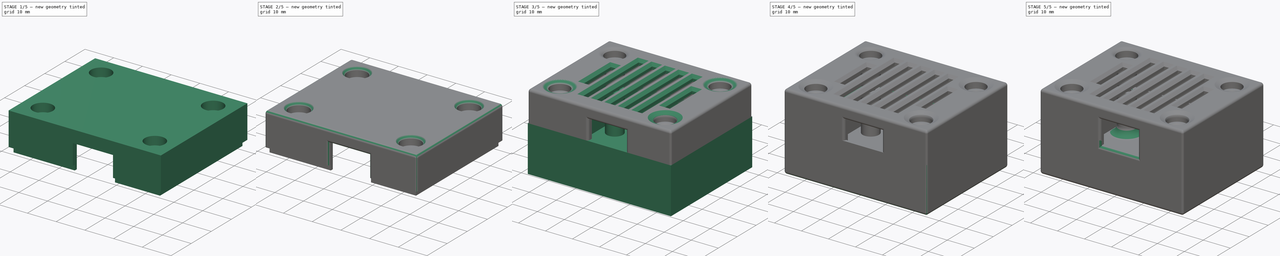
[diagram: build sequence overview — one tinted view per stage of 5, left to right]
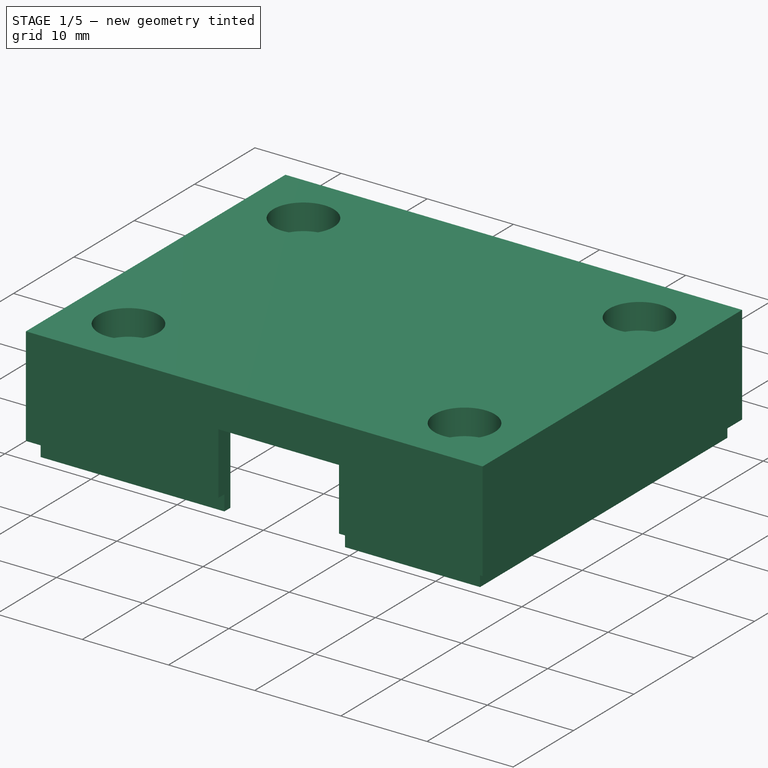
[diagram: stage 1 of 5 — iso view after this stage's code; geometry added in this stage tinted green]
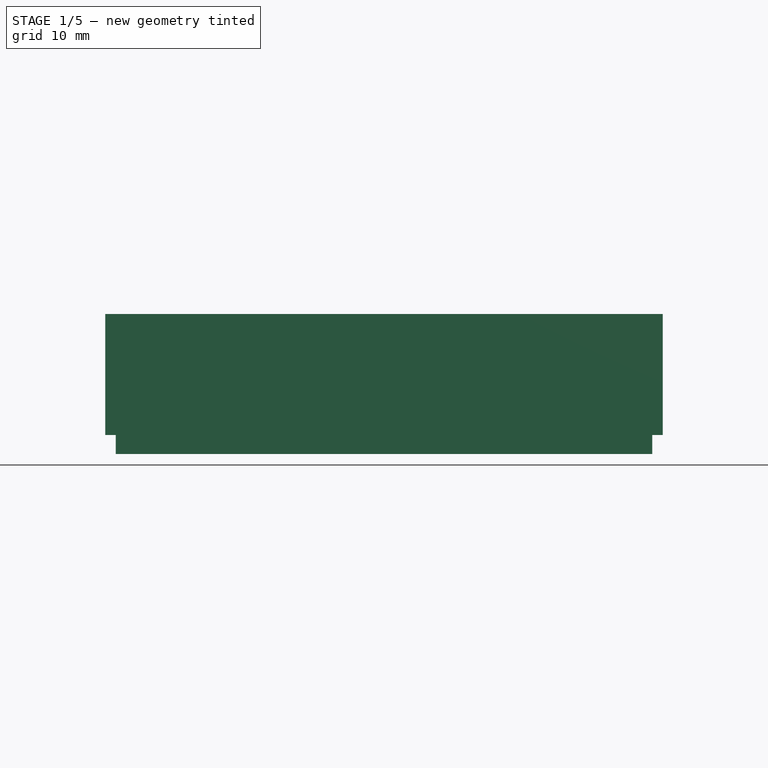
[diagram: stage 1 of 5 — front view after this stage's code; geometry added in this stage tinted green]
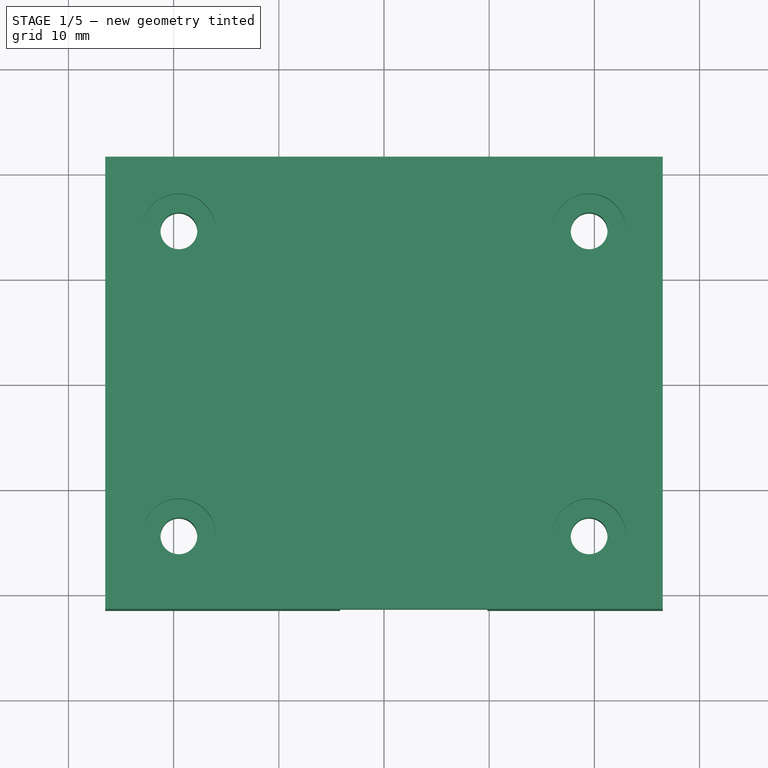
[diagram: stage 1 of 5 — top view after this stage's code; geometry added in this stage tinted green]
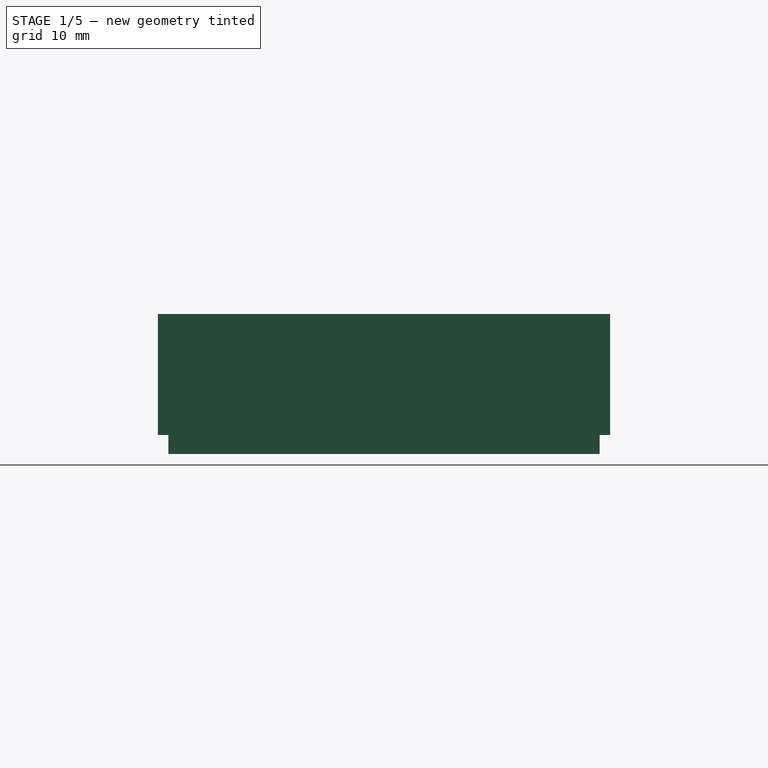
[diagram: stage 1 of 5 — right view after this stage's code; geometry added in this stage tinted green]
FCSTD DOCUMENT  (FreeCAD 0.21R33694 (Git))
Label: DTU_Gehäuse_2
License: All rights reserved
LicenseURL: http://en.wikipedia.org/wiki/All_rights_reserved
objects: Sketcher::SketchObject×15, App::Part×11, PartDesign::Fillet×11, PartDesign::Pocket×10, Part::Feature×10, PartDesign::Plane×8, PartDesign::Pad×6, PartDesign::Chamfer×6, PartDesign::Body×2, Spreadsheet::Sheet×1, Part::Part2DObjectPython×1
note: 102 computed .brp shape members not serialized (recipe doc carries the construction recipe); baked Part::Feature solids carry a one-line shape summary decoded from their .brp

FEATURE [PartDesign::Plane] DatumPlane002  label="AnschlussBoden"
  AttachmentOffset = pos=(0,0,17) rot=(0,0,1;0rad)
  Length = 63.2956
  MapMode = 5
  Placement = pos=(0,0,17) rot=(0,0,1;0rad)
  ResizeMode = 0
  Support = -> [XY_Plane013]
  Width = 60.2956
FEATURE [PartDesign::Plane] DatumPlane003  label="HöheDeckel"
  AttachmentOffset = pos=(0,0,11.5) rot=(0,0,1;0rad)
  Length = 63.2956
  MapMode = 5
  Placement = pos=(0,0,28.5) rot=(0,0,1;0rad)
  ResizeMode = 0
  Support = -> [DatumPlane002]
  Width = 60.2956
FEATURE [Sketcher::SketchObject] Sketch007  label="Überlappung001"
  AttachmentOffset = pos=(0,0,-1.8) rot=(0,0,1;0rad)
  FullyConstrained = true
  MapMode = 5
  Placement = pos=(0,0,15.2) rot=(0,0,1;0rad)
  Support = -> [DatumPlane002]
  expr: .AttachmentOffset.Base.z = Spreadsheet.ueberlappung * -1 + 0.2 mm
  expr: Constraints[10] = Spreadsheet.pcb_l + 2 * Spreadsheet.dicke + 2 * Spreadsheet.abstand
  expr: Constraints[20] = Spreadsheet.pcb_b + 2 * Spreadsheet.abstand + Spreadsheet.dicke
  expr: Constraints[21] = Spreadsheet.pcb_l + 2 * Spreadsheet.abstand + Spreadsheet.dicke
  expr: Constraints[9] = Spreadsheet.pcb_b + 2 * Spreadsheet.dicke + 2 * Spreadsheet.abstand
  sketch-geometry (8):
    g0: LineSegment StartX=-26.5 StartY=21.5 StartZ=0 EndX=26.5 EndY=21.5 EndZ=0
    g1: LineSegment StartX=26.5 StartY=21.5 StartZ=0 EndX=26.5 EndY=-21.5 EndZ=0
    g2: LineSegment StartX=26.5 StartY=-21.5 StartZ=0 EndX=-26.5 EndY=-21.5 EndZ=0
    g3: LineSegment StartX=-26.5 StartY=-21.5 StartZ=0 EndX=-26.5 EndY=21.5 EndZ=0
    g4: LineSegment StartX=-25.5 StartY=20.5 StartZ=0 EndX=25.5 EndY=20.5 EndZ=0
    g5: LineSegment StartX=25.5 StartY=20.5 StartZ=0 EndX=25.5 EndY=-20.5 EndZ=0
    g6: LineSegment StartX=25.5 StartY=-20.5 StartZ=0 EndX=-25.5 EndY=-20.5 EndZ=0
    g7: LineSegment StartX=-25.5 StartY=-20.5 StartZ=0 EndX=-25.5 EndY=20.5 EndZ=0
  constraints (22):
    c: Coincident(g0,g1)
    c: Coincident(g1,g2)
    c: Coincident(g2,g3)
    c: Coincident(g3,g0)
    c: Horizontal(g0)
    c: Horizontal(g2)
    c: Vertical(g1)
    c: Vertical(g3)
    c: Symmetric(g0,g2,g-1)
    c: DistanceX(g0,g0) = 53
    c: DistanceY(g1,g1) = 43
    c: Coincident(g4,g5)
    c: Coincident(g5,g6)
    c: Coincident(g6,g7)
    c: Coincident(g7,g4)
    c: Horizontal(g4)
    c: Horizontal(g6)
    c: Vertical(g5)
    c: Vertical(g7)
    c: Symmetric(g4,g6,g-1)
    c: DistanceX(g4,g4) = 51
    c: DistanceY(g5,g5) = 41
FEATURE [Sketcher::SketchObject] Sketch006  label="HauptKörper"
  AttachmentOffset = pos=(0,0,-1.8) rot=(0,0,1;0rad)
  FullyConstrained = true
  MapMode = 5
  Placement = pos=(0,0,15.2) rot=(0,0,1;0rad)
  Support = -> [DatumPlane002]
  expr: .AttachmentOffset.Base.z = Spreadsheet.ueberlappung * -1 + 0.2 mm
  expr: Constraints[10] = Spreadsheet.pcb_l + 2 * Spreadsheet.dicke + 2 * Spreadsheet.abstand
  expr: Constraints[9] = Spreadsheet.pcb_b + 2 * Spreadsheet.dicke + 2 * Spreadsheet.abstand
  sketch-geometry (4):
    g0: LineSegment StartX=-26.5 StartY=21.5 StartZ=0 EndX=26.5 EndY=21.5 EndZ=0
    g1: LineSegment StartX=26.5 StartY=21.5 StartZ=0 EndX=26.5 EndY=-21.5 EndZ=0
    g2: LineSegment StartX=26.5 StartY=-21.5 StartZ=0 EndX=-26.5 EndY=-21.5 EndZ=0
    g3: LineSegment StartX=-26.5 StartY=-21.5 StartZ=0 EndX=-26.5 EndY=21.5 EndZ=0
  constraints (11):
    c: Coincident(g0,g1)
    c: Coincident(g1,g2)
    c: Coincident(g2,g3)
    c: Coincident(g3,g0)
    c: Horizontal(g0)
    c: Horizontal(g2)
    c: Vertical(g1)
    c: Vertical(g3)
    c: Symmetric(g0,g2,g-1)
    c: DistanceX(g0,g0) = 53
    c: DistanceY(g1,g1) = 43
FEATURE [PartDesign::Pad] Pad003  label="HauptKörper001"
  Direction = (0,0,1)
  Length = 10
  Length2 = 10
  Placement = pos=(0,0,17) rot=(0,0,1;0rad)
  Profile = -> Sketch006
  ReferenceAxis = -> Sketch006 [N_Axis]
  Type = 3
  UpToFace = -> DatumPlane003 [Plane]
FEATURE [PartDesign::Pocket] Pocket003  label="Überlappung002"
  BaseFeature = -> Pad003
  Direction = (0,0,-1)
  Length = 1.8
  Length2 = 5
  Placement = pos=(0,0,17) rot=(0,0,1;0rad)
  Profile = -> Sketch007
  ReferenceAxis = -> Sketch007 [N_Axis]
  Reversed = true
  Type = 0
  expr: Length = Spreadsheet.ueberlappung + 0.2 mm * -1
FEATURE [Sketcher::SketchObject] Sketch008  label="InnenRaum"
  AttachmentOffset = pos=(0,0,-1.8) rot=(0,0,1;0rad)
  FullyConstrained = true
  MapMode = 5
  Placement = pos=(0,0,15.2) rot=(0,0,1;0rad)
  Support = -> [DatumPlane002]
  expr: .AttachmentOffset.Base.z = Spreadsheet.ueberlappung * -1 + 0.2 mm
  expr: Constraints[10] = Spreadsheet.pcb_b + 2 * Spreadsheet.abstand
  expr: Constraints[9] = Spreadsheet.pcb_l + 2 * Spreadsheet.abstand
  sketch-geometry (4):
    g0: LineSegment StartX=-24.5 StartY=19.5 StartZ=0 EndX=24.5 EndY=19.5 EndZ=0
    g1: LineSegment StartX=24.5 StartY=19.5 StartZ=0 EndX=24.5 EndY=-19.5 EndZ=0
    g2: LineSegment StartX=24.5 StartY=-19.5 StartZ=0 EndX=-24.5 EndY=-19.5 EndZ=0
    g3: LineSegment StartX=-24.5 StartY=-19.5 StartZ=0 EndX=-24.5 EndY=19.5 EndZ=0
  constraints (11):
    c: Coincident(g0,g1)
    c: Coincident(g1,g2)
    c: Coincident(g2,g3)
    c: Coincident(g3,g0)
    c: Horizontal(g0)
    c: Horizontal(g2)
    c: Vertical(g1)
    c: Vertical(g3)
    c: Symmetric(g0,g2,g-1)
    c: DistanceY(g1,g1) = 39
    c: DistanceX(g2,g2) = 49
FEATURE [PartDesign::Plane] DatumPlane004  label="DeckelInnen"
  AttachmentOffset = pos=(0,0,-2) rot=(0,0,1;0rad)
  Length = 63.2956
  MapMode = 2
  Placement = pos=(0,0,26.5) rot=(0,0,1;0rad)
  ResizeMode = 0
  Support = -> [DatumPlane003]
  Width = 60.2956
  expr: .AttachmentOffset.Base.z = Spreadsheet.dicke * -1
FEATURE [PartDesign::Pocket] Pocket004  label="InnenRaum001"
  BaseFeature = -> Pocket003
  Direction = (0,0,-1)
  Length = 0
  Length2 = 5
  Placement = pos=(0,0,17) rot=(0,0,1;0rad)
  Profile = -> Sketch008
  ReferenceAxis = -> Sketch008 [N_Axis]
  Reversed = true
  Type = 3
  UpToFace = -> DatumPlane004 [Plane]
FEATURE [Sketcher::SketchObject] Sketch010
  FullyConstrained = true
  MapMode = 5
  Placement = pos=(0,0,28.5) rot=(0,0,1;0rad)
  Support = -> [DatumPlane003]
  sketch-geometry (4):
    g0: Circle CenterX=-19.5 CenterY=14.5 CenterZ=0 NormalX=0 NormalY=0 NormalZ=1 AngleXU=0 Radius=3.5
    g1: Circle CenterX=19.5 CenterY=14.5 CenterZ=0 NormalX=0 NormalY=0 NormalZ=1 AngleXU=0 Radius=3.5
    g2: Circle CenterX=-19.5 CenterY=-14.5 CenterZ=0 NormalX=0 NormalY=0 NormalZ=1 AngleXU=0 Radius=3.5
    g3: Circle CenterX=19.5 CenterY=-14.5 CenterZ=0 NormalX=0 NormalY=0 NormalZ=1 AngleXU=0 Radius=3.5
  constraints (11):
    c: Equal(g0,g1)
    c: Equal(g1,g3)
    c: Equal(g3,g2)
    c: Horizontal(g0,g1)
    c: Vertical(g0,g2)
    c: Horizontal(g2,g3)
    c: Vertical(g1,g3)
    c: Symmetric(g1,g2,g-1)
    c: Diameter(g0) = 7
    c: DistanceX(g0,g1) = 39
    c: DistanceY(g2,g0) = 29
FEATURE [Sketcher::SketchObject] Sketch011
  FullyConstrained = true
  MapMode = 5
  Placement = pos=(0,0,26.5) rot=(0,0,1;0rad)
  Support = -> [DatumPlane004]
  sketch-geometry (8):
    g0: Circle CenterX=-19.5 CenterY=14.5 CenterZ=0 NormalX=0 NormalY=0 NormalZ=1 AngleXU=0 Radius=4.5
    g1: Circle CenterX=19.5 CenterY=14.5 CenterZ=0 NormalX=0 NormalY=0 NormalZ=1 AngleXU=0 Radius=4.5
    g2: Circle CenterX=19.5 CenterY=-14.5 CenterZ=0 NormalX=0 NormalY=0 NormalZ=1 AngleXU=0 Radius=4.5
    g3: Circle CenterX=-19.5 CenterY=-14.5 CenterZ=0 NormalX=0 NormalY=0 NormalZ=1 AngleXU=0 Radius=4.5
    g4: Circle CenterX=-19.5 CenterY=14.5 CenterZ=0 NormalX=0 NormalY=0 NormalZ=1 AngleXU=0 Radius=1.75
    g5: Circle CenterX=19.5 CenterY=14.5 CenterZ=0 NormalX=0 NormalY=0 NormalZ=1 AngleXU=0 Radius=1.75
    g6: Circle CenterX=-19.5 CenterY=-14.5 CenterZ=0 NormalX=0 NormalY=0 NormalZ=1 AngleXU=0 Radius=1.75
    g7: Circle CenterX=19.5 CenterY=-14.5 CenterZ=0 NormalX=0 NormalY=0 NormalZ=1 AngleXU=0 Radius=1.75
  constraints (19):
    c: Equal(g0,g1)
    c: Equal(g1,g2)
    c: Equal(g2,g3)
    c: Horizontal(g0,g1)
    c: Vertical(g0,g3)
    c: Vertical(g1,g2)
    c: Horizontal(g3,g2)
    c: Symmetric(g1,g3,g-1)
    c: DistanceX(g0,g1) = 39
    c: DistanceY(g3,g0) = 29
    c: Diameter(g0) = 9
    c: Coincident(g4,g0)
    c: Coincident(g5,g1)
    c: Coincident(g6,g3)
    c: Coincident(g7,g2)
    c: Equal(g4,g5)
    c: Equal(g4,g7)
    c: Equal(g4,g6)
    c: Diameter(g4) = 3.5
FEATURE [PartDesign::Pad] Pad005  label="SchraubendomeGroß"
  BaseFeature = -> Pocket004
  Direction = (0,0,1)
  Length = 3
  Length2 = 10
  Placement = pos=(0,0,17) rot=(0,0,1;0rad)
  Profile = -> Sketch011
  ReferenceAxis = -> Sketch011 [N_Axis]
  Reversed = true
  Type = 0
FEATURE [PartDesign::Plane] DatumPlane005  label="SchraubenDomeInnen"
  AttachmentOffset = pos=(0,0,-3) rot=(0,0,1;0rad)
  Length = 63.2956
  MapMode = 2
  Placement = pos=(0,0,23.5) rot=(0,0,1;0rad)
  ResizeMode = 0
  Support = -> [DatumPlane004]
  Width = 60.2956
FEATURE [Sketcher::SketchObject] Sketch009  label="Schraubendome001"
  FullyConstrained = true
  MapMode = 5
  Placement = pos=(0,0,26.5) rot=(0,0,1;0rad)
  Support = -> [DatumPlane004,DatumPlane005]
  sketch-geometry (8):
    g0: Circle CenterX=-19.5 CenterY=14.5 CenterZ=0 NormalX=0 NormalY=0 NormalZ=1 AngleXU=0 Radius=1.75
    g1: Circle CenterX=19.5 CenterY=14.5 CenterZ=0 NormalX=0 NormalY=0 NormalZ=1 AngleXU=0 Radius=1.75
    g2: Circle CenterX=-19.5 CenterY=-14.5 CenterZ=0 NormalX=0 NormalY=0 NormalZ=1 AngleXU=0 Radius=1.75
    g3: Circle CenterX=19.5 CenterY=-14.5 CenterZ=0 NormalX=0 NormalY=0 NormalZ=1 AngleXU=0 Radius=1.75
    g4: Circle CenterX=-19.5 CenterY=14.5 CenterZ=0 NormalX=0 NormalY=0 NormalZ=1 AngleXU=0 Radius=3
    g5: Circle CenterX=19.5 CenterY=14.5 CenterZ=0 NormalX=0 NormalY=0 NormalZ=1 AngleXU=0 Radius=3
    g6: Circle CenterX=19.5 CenterY=-14.5 CenterZ=0 NormalX=0 NormalY=0 NormalZ=1 AngleXU=0 Radius=3
    g7: Circle CenterX=-19.5 CenterY=-14.5 CenterZ=0 NormalX=0 NormalY=0 NormalZ=1 AngleXU=0 Radius=3
  constraints (20):
    c: Equal(g0,g1)
    c: Equal(g1,g3)
    c: Equal(g3,g2)
    c: Diameter(g0) = 3.5
    c: Horizontal(g0,g1)
    c: Vertical(g0,g2)
    c: DistanceX(g0,g1) = 39
    c: DistanceY(g3,g0) = 29
    c: Coincident(g4,g0)
    c: Coincident(g5,g1)
    c: Coincident(g6,g3)
    c: Coincident(g7,g2)
    c: Equal(g4,g5)
    c: Equal(g5,g6)
    c: Equal(g6,g7)
    c: Diameter(g4) = 6
    c: Horizontal(g2,g3)
    c: Vertical(g1,g3)
    c: DistanceX(g0,g-1) = 19.5
    c: DistanceY(g2,g-1) = 14.5
FEATURE [PartDesign::Pad] Pad006  label="SchraubendomeKlein"
  BaseFeature = -> Pad005
  Direction = (0,0,1)
  Length = 8.4
  Length2 = 10
  Placement = pos=(0,0,17) rot=(0,0,1;0rad)
  Profile = -> Sketch009
  ReferenceAxis = -> Sketch009 [N_Axis]
  Reversed = true
  Type = 0
FEATURE [PartDesign::Pocket] Pocket005  label="Schraubenkopf"
  BaseFeature = -> Pad006
  Direction = (0,0,-1)
  Length = 3
  Length2 = 5
  Placement = pos=(0,0,17) rot=(0,0,1;0rad)
  Profile = -> Sketch010
  ReferenceAxis = -> Sketch010 [N_Axis]
  Type = 0
FEATURE [PartDesign::Pocket] Pocket008  label="UsbAnschluss001"
  BaseFeature = -> Pocket005
  Direction = (0,1,-2e-16)
  Length = 2
  Length2 = 5
  Placement = pos=(0,0,17) rot=(0,0,1;0rad)
  Profile = -> Sketch012
  ReferenceAxis = -> Sketch012 [N_Axis]
  Type = 0
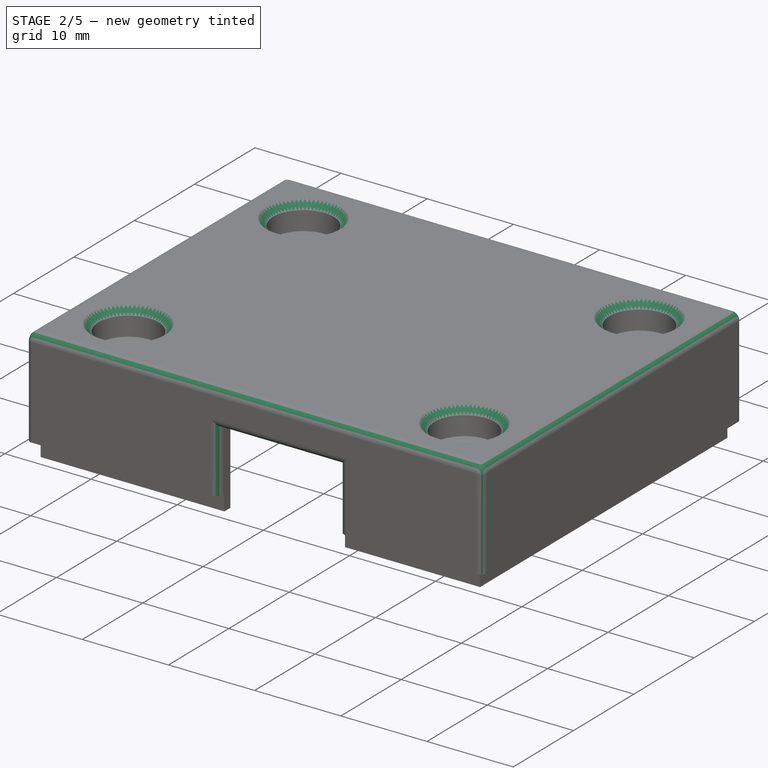
[diagram: stage 2 of 5 — iso view after this stage's code; geometry added in this stage tinted green]
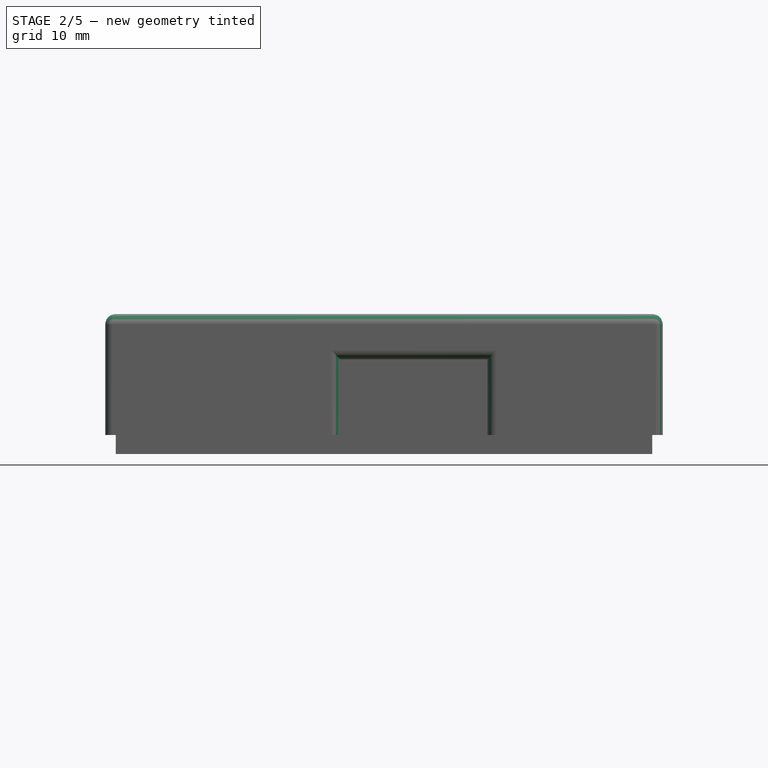
[diagram: stage 2 of 5 — front view after this stage's code; geometry added in this stage tinted green]
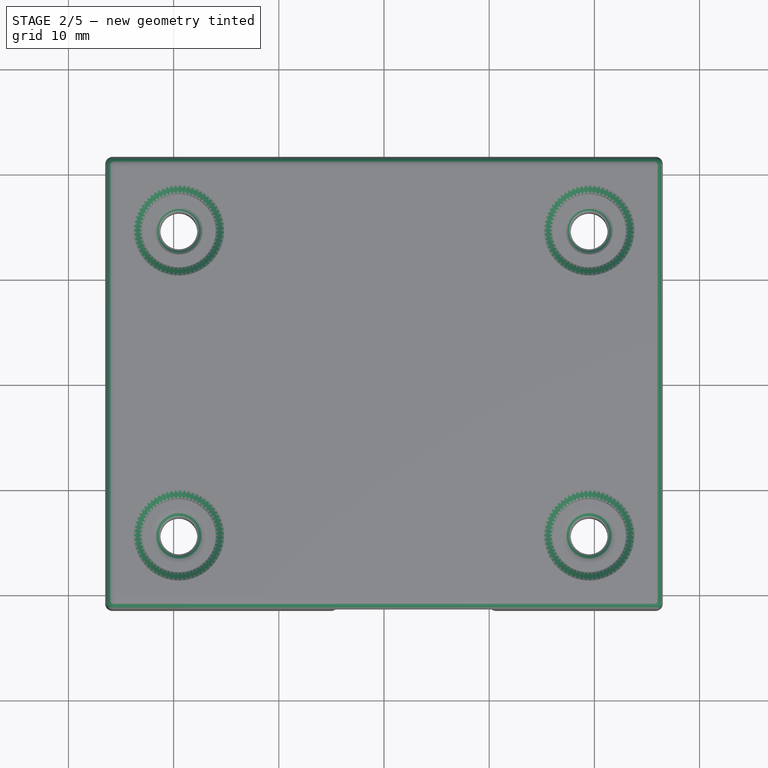
[diagram: stage 2 of 5 — top view after this stage's code; geometry added in this stage tinted green]
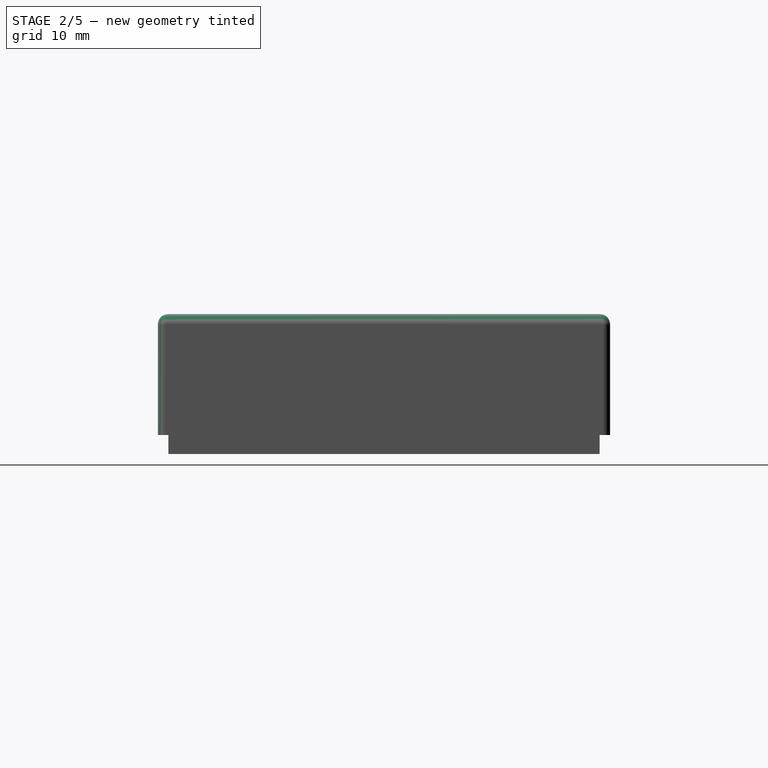
[diagram: stage 2 of 5 — right view after this stage's code; geometry added in this stage tinted green]
FEATURE [PartDesign::Fillet] Fillet004  label="Fillet004-10"
  Base = -> Pocket008 [Edge19,Edge18,Edge3,Edge17]
  BaseFeature = -> Pocket008
  Placement = pos=(0,0,17) rot=(0,0,1;0rad)
  Radius = 1
  SupportTransform = false
  UseAllEdges = false
FEATURE [PartDesign::Fillet] Fillet005  label="Fillet005-07"
  Base = -> Fillet004 [Edge22,Edge5,Edge1,Edge4]
  BaseFeature = -> Fillet004
  Placement = pos=(0,0,17) rot=(0,0,1;0rad)
  Radius = 0.7
  SupportTransform = false
  UseAllEdges = false
FEATURE [PartDesign::Chamfer] Chamfer003  label="Chamfer003-08"
  Angle = 45
  Base = -> Fillet005 [Edge36,Edge37,Edge35,Edge34]
  BaseFeature = -> Fillet005
  ChamferType = 0
  FlipDirection = false
  Placement = pos=(0,0,17) rot=(0,0,1;0rad)
  Size = 0.8
  Size2 = 1
  SupportTransform = false
  UseAllEdges = false
FEATURE [PartDesign::Chamfer] Chamfer004  label="Chamfer004-05"
  Angle = 45
  Base = -> Chamfer003 [Edge61,Edge82,Edge83,Edge84]
  BaseFeature = -> Chamfer003
  ChamferType = 0
  FlipDirection = false
  Placement = pos=(0,0,17) rot=(0,0,1;0rad)
  Size = 0.5
  Size2 = 1
  SupportTransform = false
  UseAllEdges = false
FEATURE [PartDesign::Fillet] Fillet006  label="USB Anschluss002"
  Base = -> Chamfer004 [Edge46,Edge47,Edge45]
  BaseFeature = -> Chamfer004
  Placement = pos=(0,0,17) rot=(0,0,1;0rad)
  Radius = 0.9
  SupportTransform = false
  UseAllEdges = false
FEATURE [PartDesign::Fillet] Fillet007  label="Fillet007-10"
  Base = -> Fillet006 [Edge127,Edge125,Edge126,Edge124]
  BaseFeature = -> Fillet006
  Placement = pos=(0,0,17) rot=(0,0,1;0rad)
  Radius = 1
  SupportTransform = false
  UseAllEdges = false
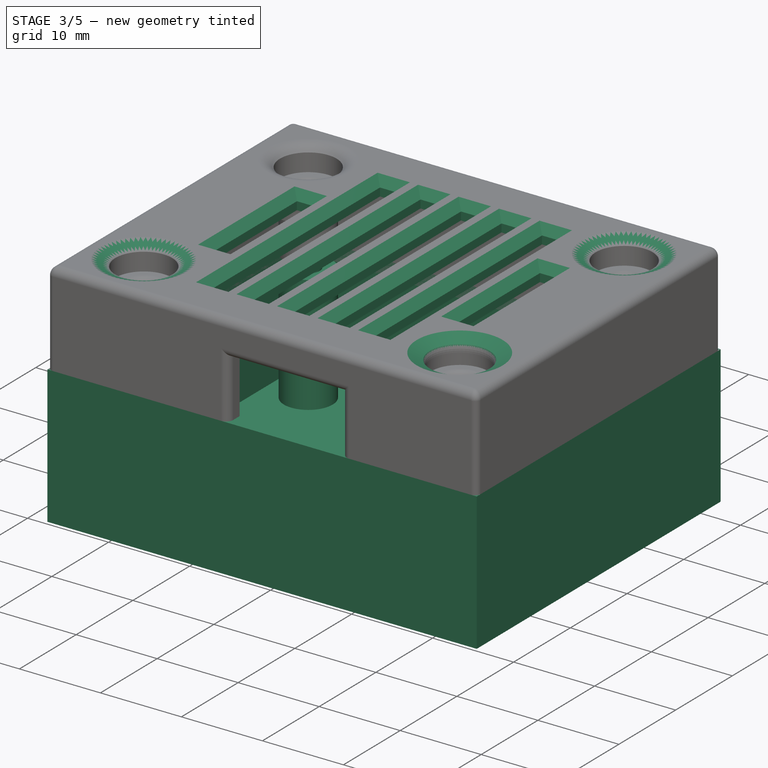
[diagram: stage 3 of 5 — iso view after this stage's code; geometry added in this stage tinted green]
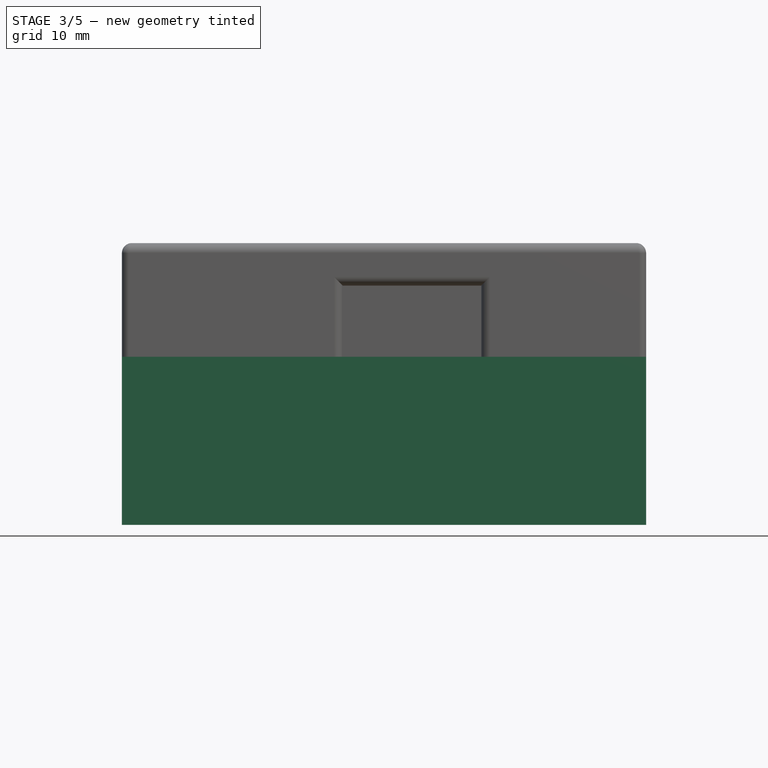
[diagram: stage 3 of 5 — front view after this stage's code; geometry added in this stage tinted green]
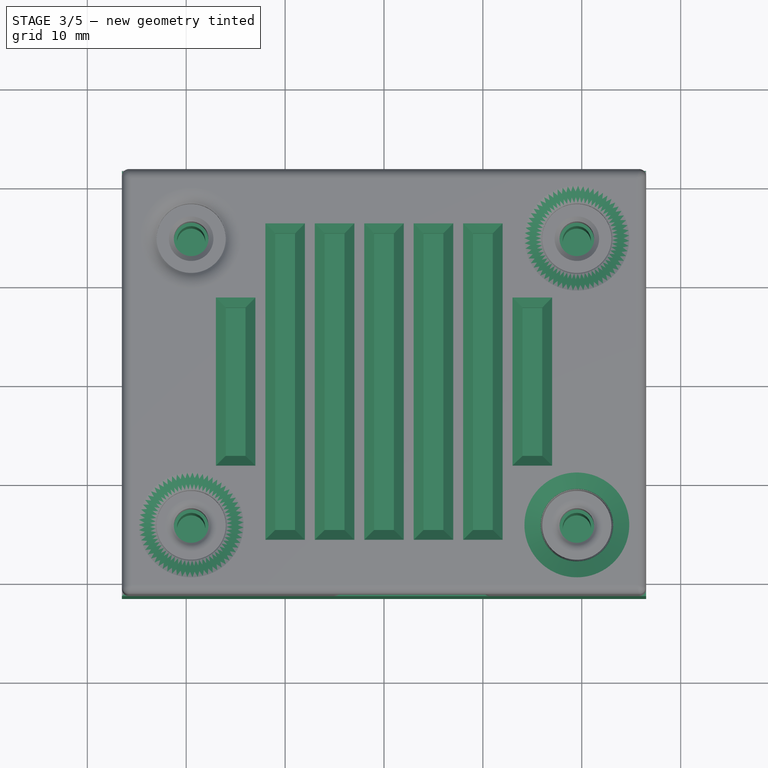
[diagram: stage 3 of 5 — top view after this stage's code; geometry added in this stage tinted green]
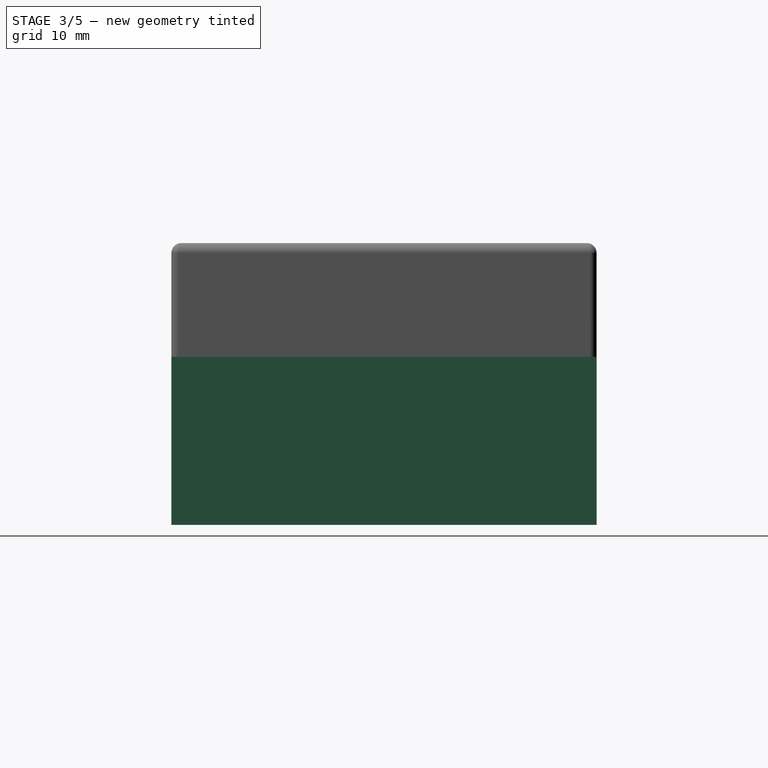
[diagram: stage 3 of 5 — right view after this stage's code; geometry added in this stage tinted green]
FEATURE [Sketcher::SketchObject] Sketch
  FullyConstrained = true
  MapMode = 5
  Support = -> [XY_Plane]
  expr: Constraints[10] = Spreadsheet.pcb_l + 2 * Spreadsheet.dicke + 2 * Spreadsheet.abstand
  expr: Constraints[9] = Spreadsheet.pcb_b + 2 * Spreadsheet.abstand + 2 * Spreadsheet.dicke
  sketch-geometry (4):
    g0: LineSegment StartX=-26.5 StartY=21.5 StartZ=0 EndX=26.5 EndY=21.5 EndZ=0
    g1: LineSegment StartX=26.5 StartY=21.5 StartZ=0 EndX=26.5 EndY=-21.5 EndZ=0
    g2: LineSegment StartX=26.5 StartY=-21.5 StartZ=0 EndX=-26.5 EndY=-21.5 EndZ=0
    g3: LineSegment StartX=-26.5 StartY=-21.5 StartZ=0 EndX=-26.5 EndY=21.5 EndZ=0
  constraints (11):
    c: Coincident(g0,g1)
    c: Coincident(g1,g2)
    c: Coincident(g2,g3)
    c: Coincident(g3,g0)
    c: Horizontal(g0)
    c: Horizontal(g2)
    c: Vertical(g1)
    c: Vertical(g3)
    c: Symmetric(g0,g2,g-1)
    c: DistanceX(g0,g0) = 53
    c: DistanceY(g1,g1) = 43
FEATURE [Spreadsheet::Sheet] Spreadsheet
  cells = A2='pcb_b; B2(pcb_b)==47 mm; A3='pcb_l; B3(pcb_l)==37 mm; A4='loch_b; B4(loch_b)==39 mm; A5='loch_l; B5(loch_l)==29 mm; A6='dicke; B6(dicke)==2 mm; A7='abstand; B7(abstand)==1 mm; A8='ueberlappung; B8(ueberlappung)==2 mm
FEATURE [PartDesign::Plane] DatumPlane  label="BodenHöhe"
  AttachmentOffset = pos=(0,0,17) rot=(0,0,1;0rad)
  Length = 60
  MapMode = 5
  Placement = pos=(0,0,17) rot=(0,0,1;0rad)
  ResizeMode = 0
  Support = -> [XY_Plane]
  Width = 60
FEATURE [PartDesign::Pad] Pad  label="Aussen"
  Direction = (0,0,1)
  Length = 15
  Length2 = 10
  Profile = -> Sketch
  ReferenceAxis = -> Sketch [N_Axis]
  Type = 3
  UpToFace = -> DatumPlane [Plane]
FEATURE [Sketcher::SketchObject] Sketch001
  FullyConstrained = true
  MapMode = 5
  Placement = pos=(0,0,17) rot=(0,0,1;0rad)
  Support = -> [DatumPlane]
  expr: Constraints[10] = Spreadsheet.pcb_l + 2 * Spreadsheet.abstand
  expr: Constraints[9] = Spreadsheet.pcb_b + 2 * Spreadsheet.abstand
  sketch-geometry (4):
    g0: LineSegment StartX=-24.5 StartY=19.5 StartZ=0 EndX=24.5 EndY=19.5 EndZ=0
    g1: LineSegment StartX=24.5 StartY=19.5 StartZ=0 EndX=24.5 EndY=-19.5 EndZ=0
    g2: LineSegment StartX=24.5 StartY=-19.5 StartZ=0 EndX=-24.5 EndY=-19.5 EndZ=0
    g3: LineSegment StartX=-24.5 StartY=-19.5 StartZ=0 EndX=-24.5 EndY=19.5 EndZ=0
  constraints (11):
    c: Coincident(g0,g1)
    c: Coincident(g1,g2)
    c: Coincident(g2,g3)
    c: Coincident(g3,g0)
    c: Horizontal(g0)
    c: Horizontal(g2)
    c: Vertical(g1)
    c: Vertical(g3)
    c: Symmetric(g0,g1,g-1)
    c: DistanceX(g0,g0) = 49
    c: DistanceY(g1,g1) = 39
FEATURE [PartDesign::Plane] DatumPlane001  label="BodenInnen"
  AttachmentOffset = pos=(0,0,2) rot=(0,0,1;0rad)
  Length = 60
  MapMode = 5
  Placement = pos=(0,0,2) rot=(0,0,1;0rad)
  ResizeMode = 0
  Support = -> [XY_Plane]
  Width = 60
  expr: .AttachmentOffset.Base.z = Spreadsheet.dicke
FEATURE [PartDesign::Pocket] Pocket
  BaseFeature = -> Pad
  Direction = (0,0,-1)
  Length = 0
  Length2 = 5
  Profile = -> Sketch001
  ReferenceAxis = -> Sketch001 [N_Axis]
  Type = 3
  UpToFace = -> DatumPlane001 [Plane]
FEATURE [Sketcher::SketchObject] Sketch002
  FullyConstrained = true
  MapMode = 5
  Placement = pos=(0,0,2) rot=(0,0,1;0rad)
  Support = -> [DatumPlane001]
  expr: Constraints[8] = Spreadsheet.loch_l
  expr: Constraints[9] = Spreadsheet.loch_b
  sketch-geometry (8):
    g0: Circle CenterX=-19.5 CenterY=14.5 CenterZ=0 NormalX=0 NormalY=0 NormalZ=1 AngleXU=0 Radius=1.425
    g1: Circle CenterX=19.5 CenterY=14.5 CenterZ=0 NormalX=0 NormalY=0 NormalZ=1 AngleXU=0 Radius=1.425
    g2: Circle CenterX=-19.5 CenterY=-14.5 CenterZ=0 NormalX=0 NormalY=0 NormalZ=1 AngleXU=0 Radius=1.425
    g3: Circle CenterX=19.5 CenterY=-14.5 CenterZ=0 NormalX=0 NormalY=0 NormalZ=1 AngleXU=0 Radius=1.425
    g4: Circle CenterX=-19.5 CenterY=14.5 CenterZ=0 NormalX=0 NormalY=0 NormalZ=1 AngleXU=0 Radius=3
    g5: Circle CenterX=19.5 CenterY=14.5 CenterZ=0 NormalX=0 NormalY=0 NormalZ=1 AngleXU=0 Radius=3
    g6: Circle CenterX=19.5 CenterY=-14.5 CenterZ=0 NormalX=0 NormalY=0 NormalZ=1 AngleXU=0 Radius=3
    g7: Circle CenterX=-19.5 CenterY=-14.5 CenterZ=0 NormalX=0 NormalY=0 NormalZ=1 AngleXU=0 Radius=3
  constraints (19):
    c: Equal(g0,g1)
    c: Equal(g1,g3)
    c: Equal(g3,g2)
    c: Diameter(g0) = 2.85
    c: Vertical(g2,g0)
    c: Vertical(g1,g3)
    c: Horizontal(g0,g1)
    c: Horizontal(g2,g3)
    c: DistanceY(g2,g0) = 29
    c: DistanceX(g2,g3) = 39
    c: Symmetric(g0,g3,g-1)
    c: Equal(g4,g5)
    c: Equal(g5,g6)
    c: Equal(g6,g7)
    c: Diameter(g4) = 6
    c: Coincident(g7,g2)
    c: Coincident(g4,g0)
    c: Coincident(g5,g1)
    c: Coincident(g6,g3)
FEATURE [PartDesign::Pad] Pad001  label="Schraubendome"
  BaseFeature = -> Pocket
  Direction = (0,0,1)
  Length = 14.5
  Length2 = 10
  Profile = -> Sketch002
  ReferenceAxis = -> Sketch002 [N_Axis]
  Type = 0
FEATURE [PartDesign::Fillet] Fillet008  label="Fillet008-20"
  Base = -> Fillet007 [Edge13,Edge15,Edge6,Edge14]
  BaseFeature = -> Fillet007
  Placement = pos=(0,0,17) rot=(0,0,1;0rad)
  Radius = 2
  SupportTransform = false
  UseAllEdges = false
FEATURE [PartDesign::Body] Body  label="Boden mit Display"
  Group = -> [DatumPlane,DatumPlane001,DatumPlane007,Sketch,Pad,Sketch001,Pocket,Sketch002,Pad001,Sketch003,Pocket001,Sketch004,Pocket002,Sketch005,Pad002,Chamfer,Fillet,Fillet001,Fillet002,Fillet003,Chamfer001,Chamfer002,ShapeString,Pocket007,Sketch013,Pocket009,Fillet009]
  Origin = -> Origin
  Tip = -> Fillet009
FEATURE [Sketcher::SketchObject] Sketch014
  FullyConstrained = true
  MapMode = 5
  Placement = pos=(0,0,28.5) rot=(0,0,1;0rad)
  Support = -> [DatumPlane003]
  sketch-geometry (28):
    g0: LineSegment StartX=-11 StartY=15 StartZ=0 EndX=-9 EndY=15 EndZ=0
    g1: LineSegment StartX=-9 StartY=15 StartZ=0 EndX=-9 EndY=-15 EndZ=0
    g2: LineSegment StartX=-9 StartY=-15 StartZ=0 EndX=-11 EndY=-15 EndZ=0
    g3: LineSegment StartX=-11 StartY=-15 StartZ=0 EndX=-11 EndY=15 EndZ=0
    g4: LineSegment StartX=-6 StartY=15 StartZ=0 EndX=-4 EndY=15 EndZ=0
    g5: LineSegment StartX=-4 StartY=15 StartZ=0 EndX=-4 EndY=-15 EndZ=0
    g6: LineSegment StartX=-4 StartY=-15 StartZ=0 EndX=-6 EndY=-15 EndZ=0
    g7: LineSegment StartX=-6 StartY=-15 StartZ=0 EndX=-6 EndY=15 EndZ=0
    g8: LineSegment StartX=-1 StartY=15 StartZ=0 EndX=1 EndY=15 EndZ=0
    g9: LineSegment StartX=1 StartY=15 StartZ=0 EndX=1 EndY=-15 EndZ=0
    g10: LineSegment StartX=1 StartY=-15 StartZ=0 EndX=-1 EndY=-15 EndZ=0
    g11: LineSegment StartX=-1 StartY=-15 StartZ=0 EndX=-1 EndY=15 EndZ=0
    g12: LineSegment StartX=4 StartY=15 StartZ=0 EndX=6 EndY=15 EndZ=0
    g13: LineSegment StartX=6 StartY=15 StartZ=0 EndX=6 EndY=-15 EndZ=0
    g14: LineSegment StartX=6 StartY=-15 StartZ=0 EndX=4 EndY=-15 EndZ=0
    g15: LineSegment StartX=4 StartY=-15 StartZ=0 EndX=4 EndY=15 EndZ=0
    g16: LineSegment StartX=9 StartY=15 StartZ=0 EndX=11 EndY=15 EndZ=0
    g17: LineSegment StartX=11 StartY=15 StartZ=0 EndX=11 EndY=-15 EndZ=0
    g18: LineSegment StartX=11 StartY=-15 StartZ=0 EndX=9 EndY=-15 EndZ=0
    g19: LineSegment StartX=9 StartY=-15 StartZ=0 EndX=9 EndY=15 EndZ=0
    g20: LineSegment StartX=-16 StartY=7.5 StartZ=0 EndX=-14 EndY=7.5 EndZ=0
    g21: LineSegment StartX=-14 StartY=7.5 StartZ=0 EndX=-14 EndY=-7.5 EndZ=0
    g22: LineSegment StartX=-14 StartY=-7.5 StartZ=0 EndX=-16 EndY=-7.5 EndZ=0
    g23: LineSegment StartX=-16 StartY=-7.5 StartZ=0 EndX=-16 EndY=7.5 EndZ=0
    g24: LineSegment StartX=14 StartY=7.5 StartZ=0 EndX=16 EndY=7.5 EndZ=0
    g25: LineSegment StartX=16 StartY=7.5 StartZ=0 EndX=16 EndY=-7.5 EndZ=0
    g26: LineSegment StartX=16 StartY=-7.5 StartZ=0 EndX=14 EndY=-7.5 EndZ=0
    g27: LineSegment StartX=14 StartY=-7.5 StartZ=0 EndX=14 EndY=7.5 EndZ=0
  constraints (76):
    c: Coincident(g0,g1)
    c: Coincident(g1,g2)
    c: Coincident(g2,g3)
    c: Coincident(g3,g0)
    c: Horizontal(g0)
    c: Horizontal(g2)
    c: Vertical(g1)
    c: Coincident(g4,g5)
    c: Coincident(g5,g6)
    c: Coincident(g6,g7)
    c: Coincident(g7,g4)
    c: Horizontal(g4)
    c: Horizontal(g6)
    c: Vertical(g5)
    c: Coincident(g8,g9)
    c: Coincident(g9,g10)
    c: Coincident(g10,g11)
    c: Coincident(g11,g8)
    c: Horizontal(g10)
    c: Vertical(g9)
    c: Symmetric(g0,g2,g-1)
    c: DistanceX(g0,g0) = 2
    c: DistanceY(g3,g3) = 30
    c: Symmetric(g4,g6,g-1)
    c: DistanceX(g4,g4) = 2
    c: DistanceY(g7,g7) = 30
    c: Symmetric(g8,g10,g-1)
    c: DistanceX(g8,g8) = 2
    c: DistanceY(g11,g11) = 30
    c: Coincident(g12,g13)
    c: Coincident(g13,g14)
    c: Coincident(g14,g15)
    c: Coincident(g15,g12)
    c: Horizontal(g12)
    c: Horizontal(g14)
    c: Vertical(g13)
    c: Coincident(g16,g17)
    c: Coincident(g17,g18)
    c: Coincident(g18,g19)
    c: Coincident(g19,g16)
    c: Horizontal(g16)
    c: Horizontal(g18)
    c: Vertical(g17)
    c: Symmetric(g12,g14,g-1)
    c: Symmetric(g16,g18,g-1)
    c: DistanceX(g12,g12) = 2
    c: DistanceX(g16,g16) = 2
    c: DistanceY(g13,g13) = 30
    c: DistanceY(g17,g17) = 30
    c: DistanceX(g8,g12) = 5
    c: DistanceX(g12,g16) = 5
    c: Symmetric(g8,g8,g-2)
    c: DistanceX(g4,g8) = 5
    c: DistanceX(g0,g4) = 5
    c: Coincident(g20,g21)
    c: Coincident(g21,g22)
    c: Coincident(g22,g23)
    c: Coincident(g23,g20)
    c: Horizontal(g20)
    c: Horizontal(g22)
    c: Vertical(g21)
    c: Coincident(g24,g25)
    c: Coincident(g25,g26)
    c: Coincident(g26,g27)
    c: Coincident(g27,g24)
    c: Horizontal(g24)
    c: Horizontal(g26)
    c: Vertical(g25)
    c: Symmetric(g20,g22,g-1)
    c: Symmetric(g24,g26,g-1)
    c: DistanceX(g20,g20) = 2
    c: DistanceX(g24,g24) = 2
    c: DistanceY(g23,g23) = 15
    c: DistanceY(g27,g27) = 15
    c: DistanceX(g20,g0) = 5
    c: DistanceX(g16,g24) = 5
FEATURE [PartDesign::Pocket] Pocket010  label="Kühlung"
  BaseFeature = -> Fillet008
  Direction = (0,0,-1)
  Length = 2
  Length2 = 5
  Placement = pos=(0,0,17) rot=(0,0,1;0rad)
  Profile = -> Sketch014
  ReferenceAxis = -> Sketch014 [N_Axis]
  Type = 0
FEATURE [PartDesign::Chamfer] Chamfer005
  Angle = 45
  Base = -> Pocket010 [Face6,Edge19,Edge23,Edge27,Edge31,Edge35,Edge39,Edge43,Edge42,Edge40,Edge38,Edge36,Edge34,Edge32,Edge30,Edge28,Edge26,Edge24,Edge22,Edge20,Edge18,Edge16,Edge17,Edge21,Edge25,Edge29,Edge33,Edge37,Edge41]
  BaseFeature = -> Pocket010
  ChamferType = 0
  FlipDirection = false
  Placement = pos=(0,0,17) rot=(0,0,1;0rad)
  Size = 1
  Size2 = 1
  SupportTransform = false
  UseAllEdges = false
FEATURE [PartDesign::Fillet] Fillet010
  Base = -> Chamfer005 [Edge212,Edge213,Edge214,Edge215]
  BaseFeature = -> Chamfer005
  Placement = pos=(0,0,17) rot=(0,0,1;0rad)
  Radius = 2
  SupportTransform = false
  UseAllEdges = false
FEATURE [PartDesign::Body] Body001  label="Deckel"
  Group = -> [DatumPlane002,Sketch006,DatumPlane003,DatumPlane004,DatumPlane005,DatumPlane006,Pad003,Sketch007,Pocket003,Sketch008,Pocket004,Sketch009,Sketch010,Sketch011,Pad005,Pad006,Pocket005,Pocket008,Sketch012,Fillet004,Fillet005,Chamfer003,Chamfer004,Fillet006,Fillet007,Fillet008,Sketch014,Pocket010,Chamfer005,Fillet010]
  Origin = -> Origin013
  Tip = -> Fillet010
FEATURE [App::Part] Part001  label="Gehäuse komplett"
  Group = -> [Body,Body001]
  Origin = -> Origin012
note: 1 file-system path scrubbed to <path> (originals preserved in the JSON sidecar)
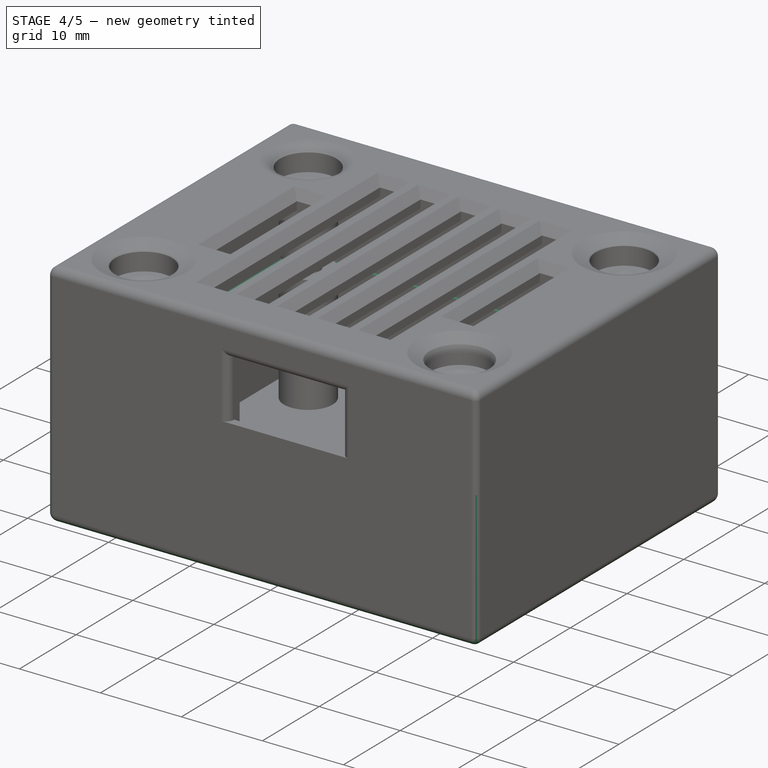
[diagram: stage 4 of 5 — iso view after this stage's code; geometry added in this stage tinted green]
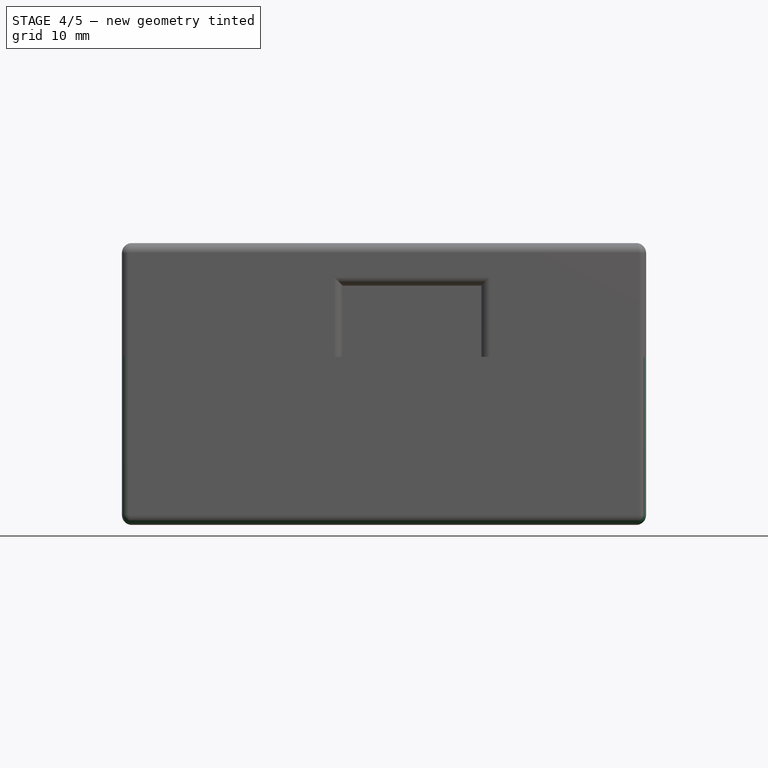
[diagram: stage 4 of 5 — front view after this stage's code; geometry added in this stage tinted green]
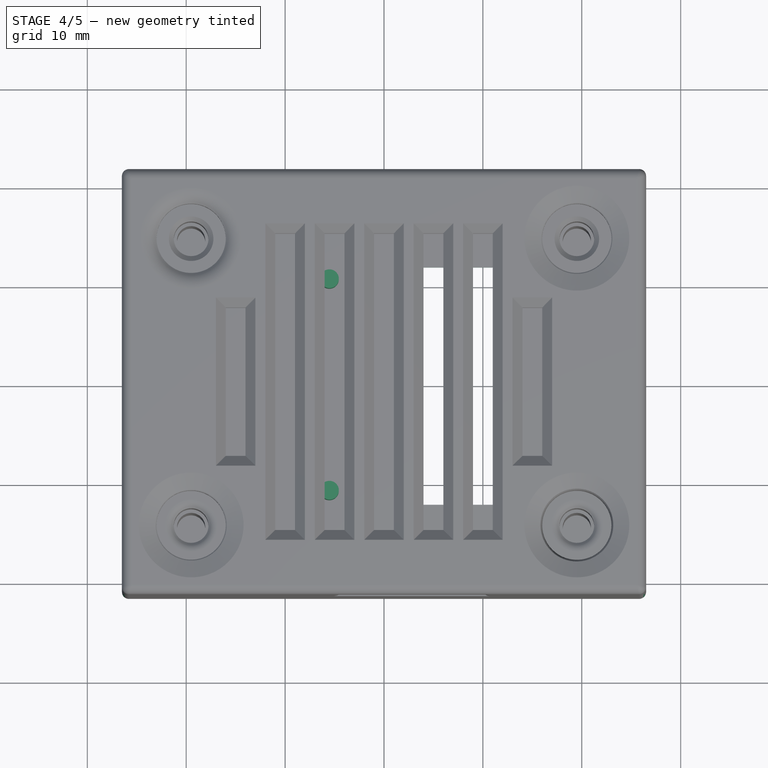
[diagram: stage 4 of 5 — top view after this stage's code; geometry added in this stage tinted green]
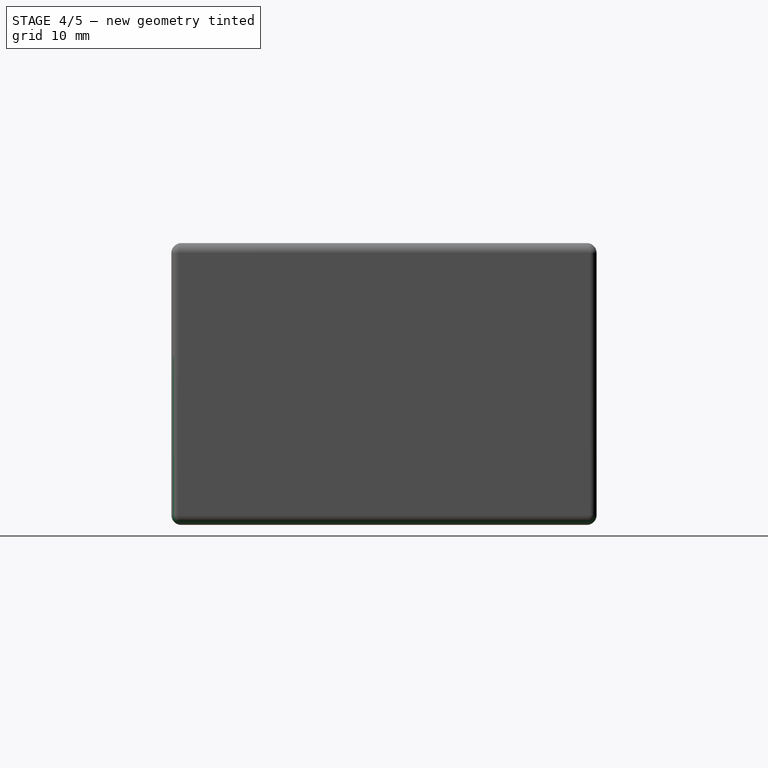
[diagram: stage 4 of 5 — right view after this stage's code; geometry added in this stage tinted green]
FEATURE [Sketcher::SketchObject] Sketch003
  FullyConstrained = true
  MapMode = 5
  Support = -> [XY_Plane]
  sketch-geometry (4):
    g0: LineSegment StartX=1 StartY=-12 StartZ=0 EndX=14 EndY=-12 EndZ=0
    g1: LineSegment StartX=14 StartY=-12 StartZ=0 EndX=14 EndY=12 EndZ=0
    g2: LineSegment StartX=14 StartY=12 StartZ=0 EndX=1 EndY=12 EndZ=0
    g3: LineSegment StartX=1 StartY=12 StartZ=0 EndX=1 EndY=-12 EndZ=0
  constraints (11):
    c: Coincident(g0,g1)
    c: Coincident(g1,g2)
    c: Coincident(g2,g3)
    c: Coincident(g3,g0)
    c: Horizontal(g0)
    c: Horizontal(g2)
    c: Vertical(g1)
    c: Symmetric(g2,g0,g-1)
    c: DistanceX(g2,g2) = 13
    c: DistanceY(g1,g1) = 24
    c: DistanceX(g-1,g0) = 1
FEATURE [PartDesign::Pocket] Pocket001  label="Display"
  BaseFeature = -> Pad001
  Direction = (0,0,-1)
  Length = 2
  Length2 = 5
  Profile = -> Sketch003
  ReferenceAxis = -> Sketch003 [N_Axis]
  Reversed = true
  Type = 0
FEATURE [Sketcher::SketchObject] Sketch004
  FullyConstrained = true
  MapMode = 5
  Placement = pos=(0,0,17) rot=(0,0,1;0rad)
  Support = -> [DatumPlane]
  expr: Constraints[10] = Spreadsheet.pcb_l + Spreadsheet.dicke + 2 * Spreadsheet.abstand
  expr: Constraints[19] = Spreadsheet.dicke / 2
  expr: Constraints[20] = Spreadsheet.dicke / 2
  expr: Constraints[9] = Spreadsheet.pcb_b + Spreadsheet.dicke + 2 * Spreadsheet.abstand
  sketch-geometry (8):
    g0: LineSegment StartX=-25.5 StartY=20.5 StartZ=0 EndX=25.5 EndY=20.5 EndZ=0
    g1: LineSegment StartX=25.5 StartY=20.5 StartZ=0 EndX=25.5 EndY=-20.5 EndZ=0
    g2: LineSegment StartX=25.5 StartY=-20.5 StartZ=0 EndX=-25.5 EndY=-20.5 EndZ=0
    g3: LineSegment StartX=-25.5 StartY=-20.5 StartZ=0 EndX=-25.5 EndY=20.5 EndZ=0
    g4: LineSegment StartX=-24.5 StartY=19.5 StartZ=0 EndX=24.5 EndY=19.5 EndZ=0
    g5: LineSegment StartX=24.5 StartY=19.5 StartZ=0 EndX=24.5 EndY=-19.5 EndZ=0
    g6: LineSegment StartX=24.5 StartY=-19.5 StartZ=0 EndX=-24.5 EndY=-19.5 EndZ=0
    g7: LineSegment StartX=-24.5 StartY=-19.5 StartZ=0 EndX=-24.5 EndY=19.5 EndZ=0
  constraints (22):
    c: Coincident(g0,g1)
    c: Coincident(g1,g2)
    c: Coincident(g2,g3)
    c: Coincident(g3,g0)
    c: Horizontal(g0)
    c: Horizontal(g2)
    c: Vertical(g1)
    c: Vertical(g3)
    c: Symmetric(g0,g2,g-1)
    c: DistanceX(g0,g0) = 51
    c: DistanceY(g3,g3) = 41
    c: Coincident(g4,g5)
    c: Coincident(g5,g6)
    c: Coincident(g6,g7)
    c: Coincident(g7,g4)
    c: Horizontal(g4)
    c: Horizontal(g6)
    c: Vertical(g5)
    c: Vertical(g7)
    c: DistanceX(g0,g4) = 1
    c: DistanceY(g4,g0) = 1
    c: Symmetric(g4,g6,g-1)
FEATURE [PartDesign::Pocket] Pocket002  label="Überlappung"
  BaseFeature = -> Pocket001
  Direction = (0,0,-1)
  Length = 2
  Length2 = 5
  Profile = -> Sketch004
  ReferenceAxis = -> Sketch004 [N_Axis]
  Type = 0
  expr: Length = Spreadsheet.ueberlappung
FEATURE [Sketcher::SketchObject] Sketch005
  FullyConstrained = true
  MapMode = 5
  Placement = pos=(0,0,2) rot=(0,0,1;0rad)
  Support = -> [DatumPlane001]
  sketch-geometry (2):
    g0: Circle CenterX=-5.52 CenterY=10.79 CenterZ=0 NormalX=0 NormalY=0 NormalZ=1 AngleXU=0 Radius=0.95
    g1: Circle CenterX=-5.52 CenterY=-10.6 CenterZ=0 NormalX=0 NormalY=0 NormalZ=1 AngleXU=0 Radius=0.95
  constraints (6):
    c: Diameter(g0) = 1.9
    c: Diameter(g1) = 1.9
    c: DistanceY(g-1,g0) = 10.79
    c: DistanceX(g0,g-1) = 5.52
    c: DistanceY(g1,g-1) = 10.6
    c: DistanceX(g1,g-1) = 5.52
FEATURE [PartDesign::Pad] Pad002  label="Display Fixierung"
  BaseFeature = -> Pocket002
  Direction = (0,0,1)
  Length = 4
  Length2 = 10
  Profile = -> Sketch005
  ReferenceAxis = -> Sketch005 [N_Axis]
  Type = 0
FEATURE [Part::Feature] Part__Feature  label="COMPOUND"
  shape: bbox 25.81 x 14.43 x 34.46 mm, 2111 faces, 46 solids (baked)
FEATURE [App::Part] WEMOS_D1_mini  label="WEMOS-D1-mini"
  Group = -> [Part__Feature]
  Origin = -> Origin014
  Placement = pos=(15.94,-18.42,4.43) rot=(1,0,0;1.5708rad)
FEATURE [Part::Feature] Part__Feature001  label="SOLID"
  shape: bbox 3.2 x 1.6 x 0.55 mm, 26 faces (baked)
FEATURE [App::Part] R_1206_3216Metric
  Group = -> [Part__Feature001]
  Origin = -> Origin015
  Placement = pos=(20.929,8.173,1.63) rot=(0,0,1;1.5708rad)
FEATURE [Part::Feature] Part__Feature002  label="SOLID001"
  shape: bbox 6.985 x 6.828 x 5.3 mm, 41 faces (baked)
FEATURE [App::Part] CP_Elec_5x5_3  label="CP_Elec_5x5.3"
  Group = -> [Part__Feature002]
  Origin = -> Origin016
  Placement = pos=(-13.107,13.974,1.63) rot=(0,0,1;1.5708rad)
FEATURE [Part::Feature] Part__Feature003  label="SOLID002"
  shape: bbox 3.2 x 1.6 x 0.55 mm, 26 faces (baked)
FEATURE [App::Part] R_1206_3216Metric001
  Group = -> [Part__Feature003]
  Origin = -> Origin017
  Placement = pos=(17.627,8.173,1.63) rot=(0,0,1;1.5708rad)
FEATURE [Part::Feature] Part__Feature004  label="SOLID003"
  shape: bbox 12 x 18 x 2.27 mm, 107 faces (baked)
FEATURE [App::Part] nRF24L01__SMD  label="nRF24L01+_SMD"
  Group = -> [Part__Feature004]
  Origin = -> Origin018
  Placement = pos=(-17.116,7.175,1.63) rot=(0,0,1;3.14159rad)
FEATURE [Part::Feature] Part__Feature005  label="SOLID004"
  shape: bbox 3.2 x 1.6 x 1.6 mm, 28 faces (baked)
FEATURE [App::Part] C_1206_3216Metric
  Group = -> [Part__Feature005]
  Origin = -> Origin019
  Placement = pos=(-17.9715,9.951,1.63) rot=(0,0,1;3.14159rad)
FEATURE [Part::Feature] Part__Feature006  label="SOLID005"
  shape: bbox 3.2 x 1.6 x 1.6 mm, 28 faces (baked)
FEATURE [App::Part] C_1206_3216Metric001
  Group = -> [Part__Feature006]
  Origin = -> Origin020
  Placement = pos=(21.183,-3.257,1.63) rot=(0,0,1;1.5708rad)
FEATURE [Part::Feature] Part__Feature007  label="SOLID006"
  shape: bbox 2.54 x 10.16 x 10.1 mm, 134 faces (baked)
FEATURE [App::Part] PinSocket_1x04_P2_54mm_Vertical  label="PinSocket_1x04_P2.54mm_Vertical"
  Group = -> [Part__Feature007]
  Origin = -> Origin021
  Placement = pos=(17.373,-3.705,0.05) rot=(1,0,0;3.14159rad)
FEATURE [Part::Feature] Part__Feature008  label="COMPOUND001"
  shape: bbox 25.4 x 26.2 x 11.81 mm, 1162 faces, 71 solids (baked)
FEATURE [App::Part] SSD1306_OLED_Display_128x64_  label="SSD1306_OLED_Display(128x64)"
  Group = -> [Part__Feature008]
  Origin = -> Origin022
  Placement = pos=(5.523,0.095,-9.55) rot=(0.707107,0.707107,0;3.14159rad)
FEATURE [Part::Feature] Part__Feature009  label="DTU PCB"
  shape: bbox 47 x 37 x 1.58 mm, 30 faces (baked)
FEATURE [App::Part] DTU_1  label="Platine"
  Group = -> [WEMOS_D1_mini,R_1206_3216Metric,CP_Elec_5x5_3,R_1206_3216Metric001,nRF24L01__SMD,C_1206_3216Metric,C_1206_3216Metric001,PinSocket_1x04_P2_54mm_Vertical,SSD1306_OLED_Display_128x64_,Part__Feature009]
  Origin = -> Origin023
  Placement = pos=(0,0,16.5) rot=(0,0,1;0rad)
FEATURE [PartDesign::Chamfer] Chamfer
  Angle = 45
  Base = -> Pad002 [Edge11,Edge10,Edge9,Edge8]
  BaseFeature = -> Pad002
  ChamferType = 0
  FlipDirection = false
  Size = 1
  Size2 = 1
  SupportTransform = false
  UseAllEdges = false
FEATURE [PartDesign::Fillet] Fillet
  Base = -> Chamfer [Edge8,Edge7,Edge5,Edge6]
  BaseFeature = -> Chamfer
  Radius = 1
  SupportTransform = false
  UseAllEdges = false
FEATURE [PartDesign::Fillet] Fillet001
  Base = -> Fillet [Edge30,Edge29,Edge25,Edge27]
  BaseFeature = -> Fillet
  Radius = 0.7
  SupportTransform = false
  UseAllEdges = false
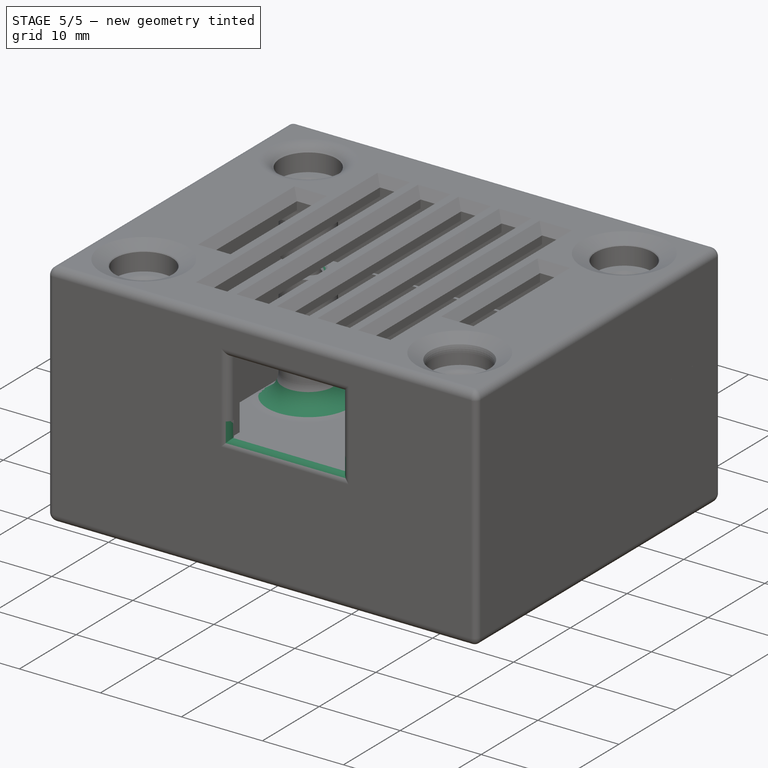
[diagram: stage 5 of 5 — iso view after this stage's code; geometry added in this stage tinted green]
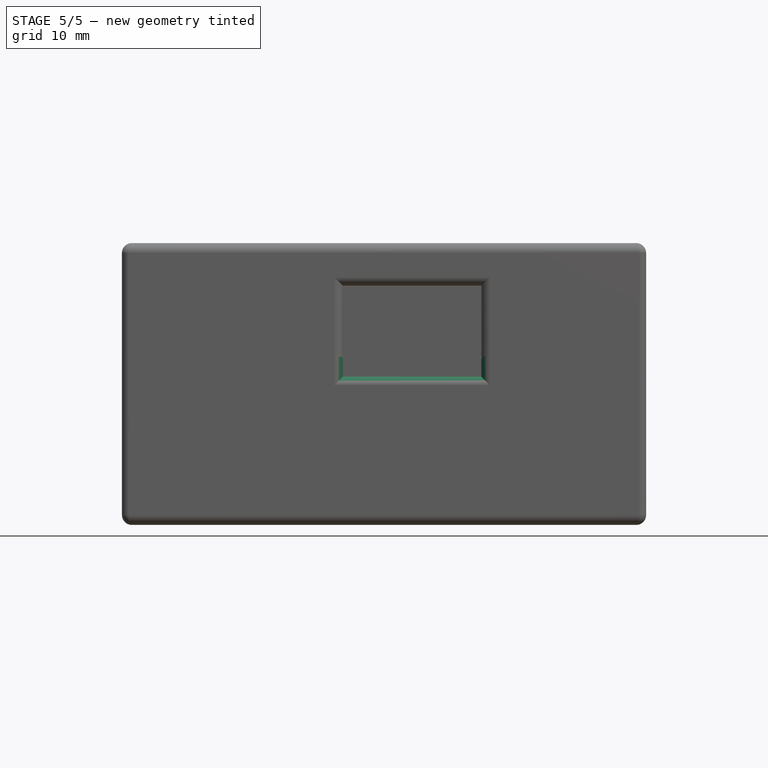
[diagram: stage 5 of 5 — front view after this stage's code; geometry added in this stage tinted green]
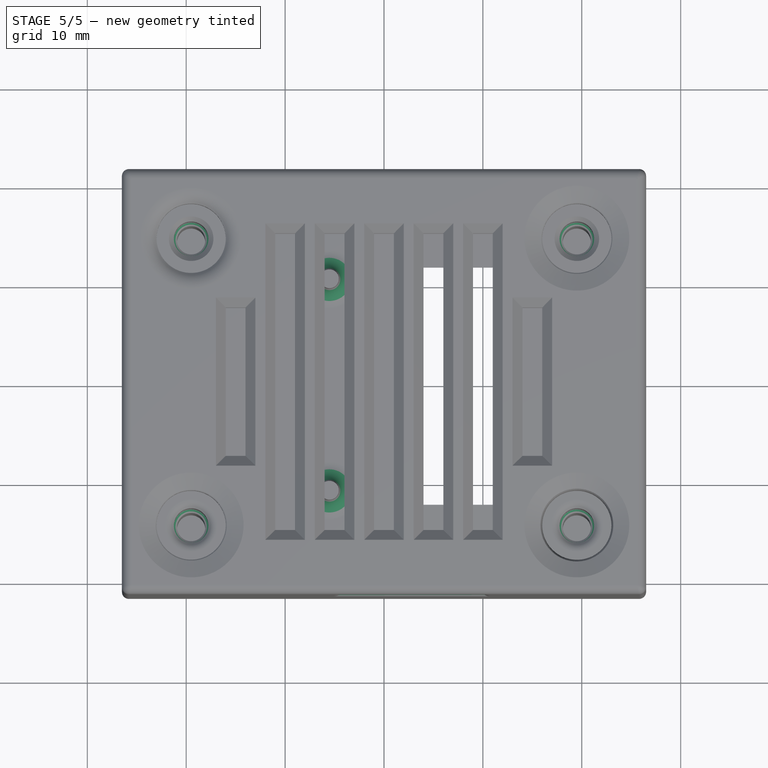
[diagram: stage 5 of 5 — top view after this stage's code; geometry added in this stage tinted green]
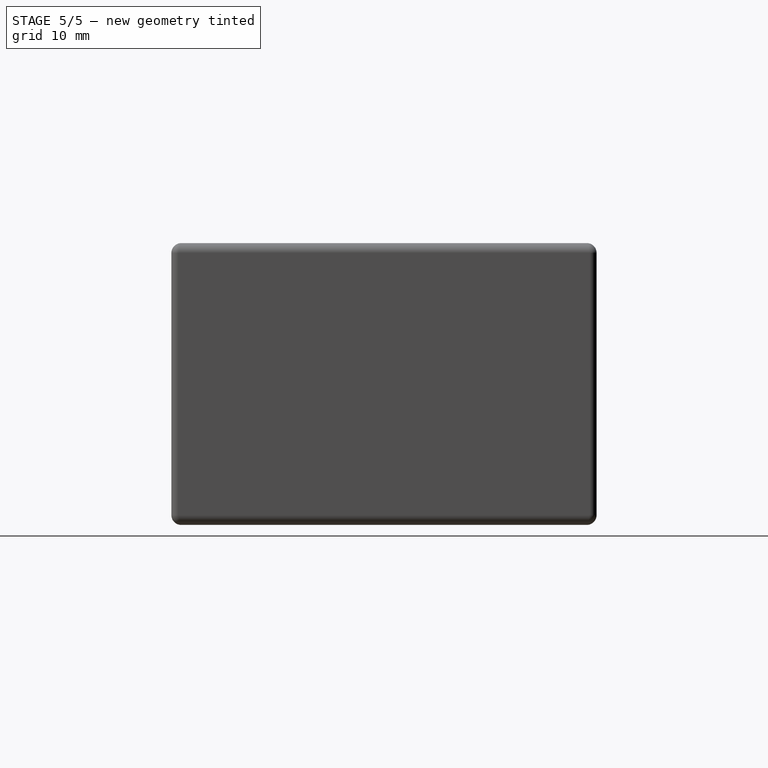
[diagram: stage 5 of 5 — right view after this stage's code; geometry added in this stage tinted green]
FEATURE [PartDesign::Fillet] Fillet002
  Base = -> Fillet001 [Edge81,Edge84,Edge83,Edge86]
  BaseFeature = -> Fillet001
  Radius = 3
  SupportTransform = false
  UseAllEdges = false
FEATURE [PartDesign::Fillet] Fillet003
  Base = -> Fillet002 [Edge40,Edge41]
  BaseFeature = -> Fillet002
  Radius = 2
  SupportTransform = false
  UseAllEdges = false
FEATURE [PartDesign::Chamfer] Chamfer001
  Angle = 45
  Base = -> Fillet003 [Edge134,Edge133,Edge131,Edge132]
  BaseFeature = -> Fillet003
  ChamferType = 0
  FlipDirection = false
  Size = 0.5
  Size2 = 1
  SupportTransform = false
  UseAllEdges = false
FEATURE [PartDesign::Chamfer] Chamfer002
  Angle = 45
  Base = -> Chamfer001 [Edge105,Edge104,Edge100,Edge102]
  BaseFeature = -> Chamfer001
  ChamferType = 0
  FlipDirection = false
  Size = 0.5
  Size2 = 1
  SupportTransform = false
  UseAllEdges = false
FEATURE [PartDesign::Plane] DatumPlane006  label="UsbAnschluss"
  Length = 63.6499
  MapMode = 5
  Placement = pos=(0,-21.5,17) rot=(1,0,0;1.5708rad)
  ResizeMode = 0
  Support = -> [Pad006]
  Width = 64.1499
FEATURE [Sketcher::SketchObject] Sketch012  label="UsbAussparung"
  ExternalGeometry = -> [Pad006]
  FullyConstrained = true
  MapMode = 5
  Placement = pos=(0,-21.5,17) rot=(1,0,0;1.5708rad)
  Support = -> [DatumPlane006]
  sketch-geometry (5):
    g0: LineSegment StartX=-4.17 StartY=7.2 StartZ=0 EndX=9.83 EndY=7.2 EndZ=0
    g1: LineSegment StartX=9.83 StartY=7.2 StartZ=0 EndX=9.83 EndY=-1.8 EndZ=0
    g2: LineSegment StartX=9.83 StartY=-1.8 StartZ=0 EndX=-4.17 EndY=-1.8 EndZ=0
    g3: LineSegment StartX=-4.17 StartY=-1.8 StartZ=0 EndX=-4.17 EndY=7.2 EndZ=0
    g4: LineSegment StartX=2.83 StartY=7.62 StartZ=0 EndX=2.83 EndY=2.47 EndZ=0
  constraints (15):
    c: Coincident(g0,g1)
    c: Coincident(g1,g2)
    c: Coincident(g2,g3)
    c: Coincident(g3,g0)
    c: Horizontal(g0)
    c: Horizontal(g2)
    c: Vertical(g1)
    c: Vertical(g3)
    c: DistanceX(g0,g0) = 14
    c: DistanceY(g1,g1) = 9
    c: Symmetric(g0,g0,g4)
    c: DistanceX(g-1,g4) = 2.83
    c: DistanceY(g4,g0) = -0.42
    c: DistanceY(g-1,g4) = 2.47
    c: DistanceY(g4,g4) = 5.15
FEATURE [Part::Part2DObjectPython] ShapeString  # Draft 2D object (typed FeaturePython)
  FontFile = <path>
  MakeFace = true
  Placement = pos=(-13.04,-18,0) rot=(0.707107,0.707107,0;3.14159rad)
  Size = 6.5
  String = AhoyDTU
  Tracking = 0
FEATURE [PartDesign::Pocket] Pocket007  label="Schriftzug"
  BaseFeature = -> Chamfer002
  Direction = (0,0,1)
  Length = 1
  Length2 = 5
  Profile = -> ShapeString
  ReferenceAxis = -> ShapeString [N_Axis]
  Type = 0
FEATURE [PartDesign::Plane] DatumPlane007  label="USB Anschluss"
  Length = 60
  MapMode = 5
  Placement = pos=(0,-21.5,0) rot=(1,0,0;1.5708rad)
  ResizeMode = 0
  Support = -> [Pocket007]
  Width = 60
FEATURE [Sketcher::SketchObject] Sketch013
  ExternalGeometry = -> [Pocket007]
  FullyConstrained = true
  MapMode = 5
  Placement = pos=(0,-21.5,0) rot=(1,0,0;1.5708rad)
  Support = -> [DatumPlane007]
  sketch-geometry (4):
    g0: LineSegment StartX=-4.17 StartY=17 StartZ=0 EndX=9.83 EndY=17 EndZ=0
    g1: LineSegment StartX=9.83 StartY=17 StartZ=0 EndX=9.83 EndY=15 EndZ=0
    g2: LineSegment StartX=9.83 StartY=15 StartZ=0 EndX=-4.17 EndY=15 EndZ=0
    g3: LineSegment StartX=-4.17 StartY=15 StartZ=0 EndX=-4.17 EndY=17 EndZ=0
  constraints (12):
    c: Coincident(g0,g1)
    c: Coincident(g1,g2)
    c: Coincident(g2,g3)
    c: Coincident(g3,g0)
    c: Horizontal(g0)
    c: Horizontal(g2)
    c: Vertical(g1)
    c: Vertical(g3)
    c: DistanceY(g1,g1) = 2
    c: PointOnObject(g0,g-3)
    c: DistanceX(g2,g2) = 14
    c: DistanceX(g2,g-1) = 4.17
FEATURE [PartDesign::Pocket] Pocket009  label="USB Anschluss003"
  BaseFeature = -> Pocket007
  Direction = (0,1,-2e-16)
  Length = 2
  Length2 = 5
  Profile = -> Sketch013
  ReferenceAxis = -> Sketch013 [N_Axis]
  Type = 0
FEATURE [PartDesign::Fillet] Fillet009  label="USB Anschluss001"
  Base = -> Pocket009 [Edge73,Edge77,Edge78]
  BaseFeature = -> Pocket009
  Radius = 0.9
  SupportTransform = false
  UseAllEdges = false
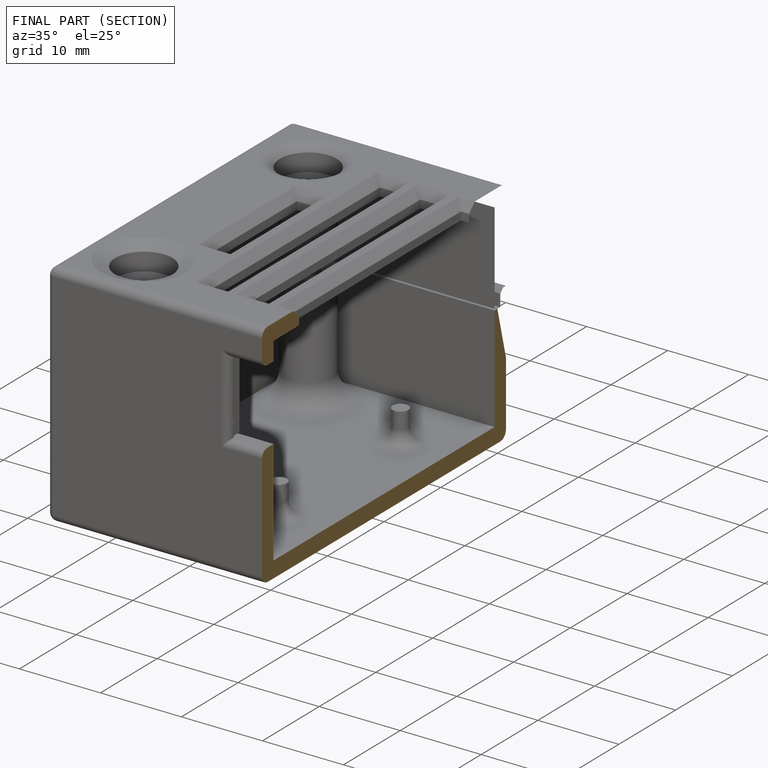
[diagram: finished part — half-section view (interior)]
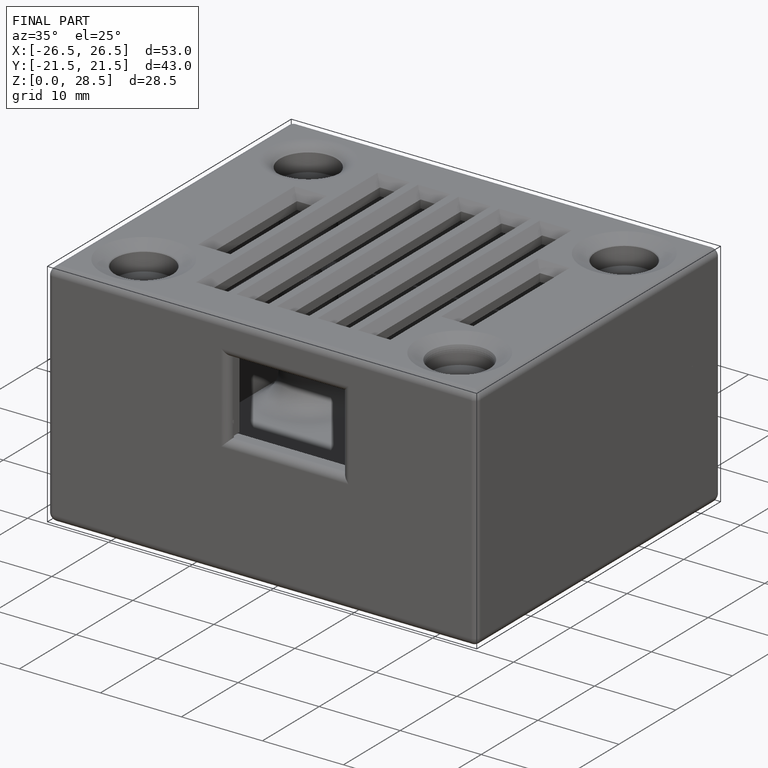
[diagram: finished part — iso view with bounding-box wireframe]
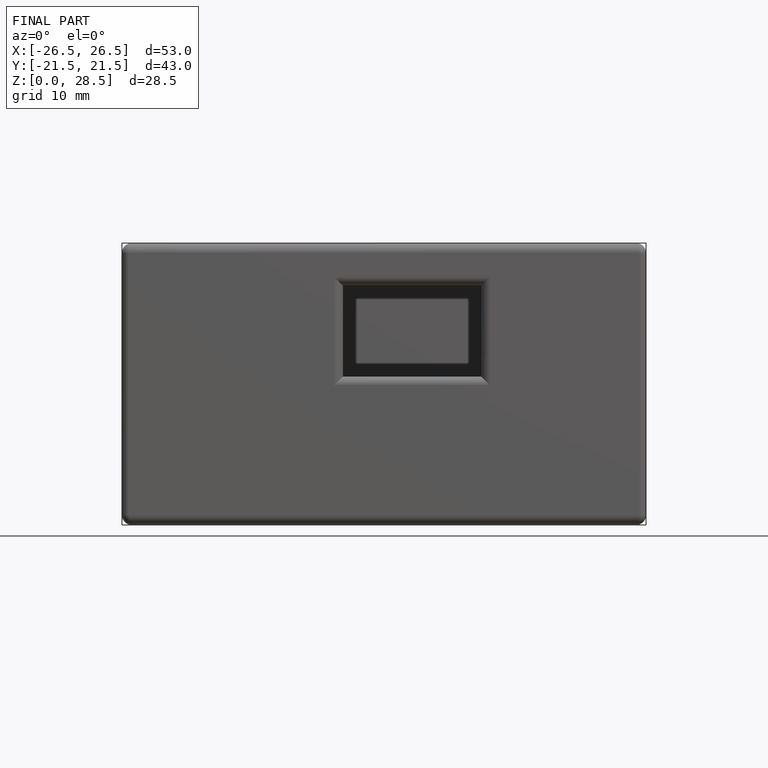
[diagram: finished part — front view with bounding-box wireframe]
